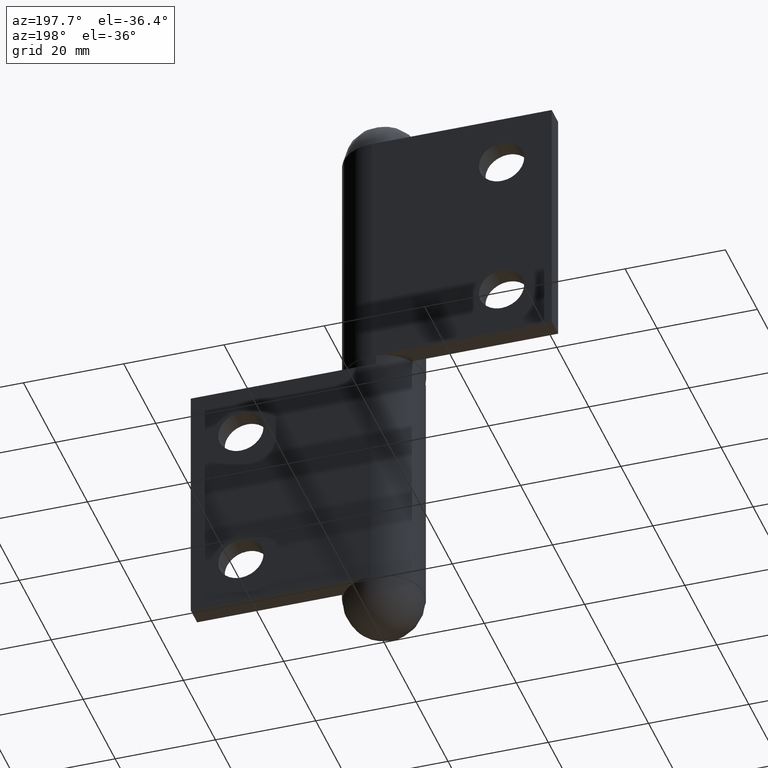
[diagram: clean part render]
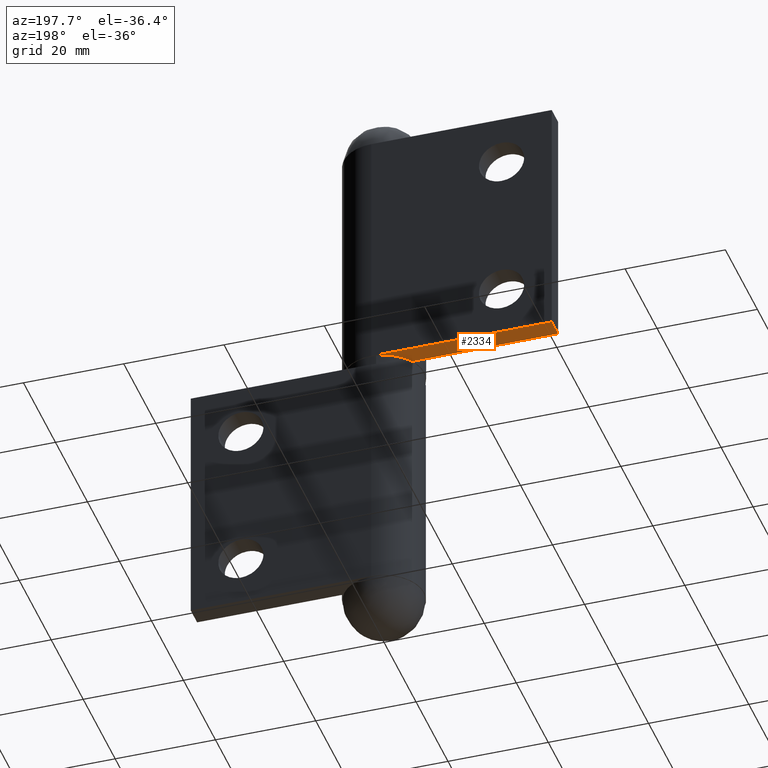
[diagram: same view with one face highlighted and labeled with its STEP entity id]
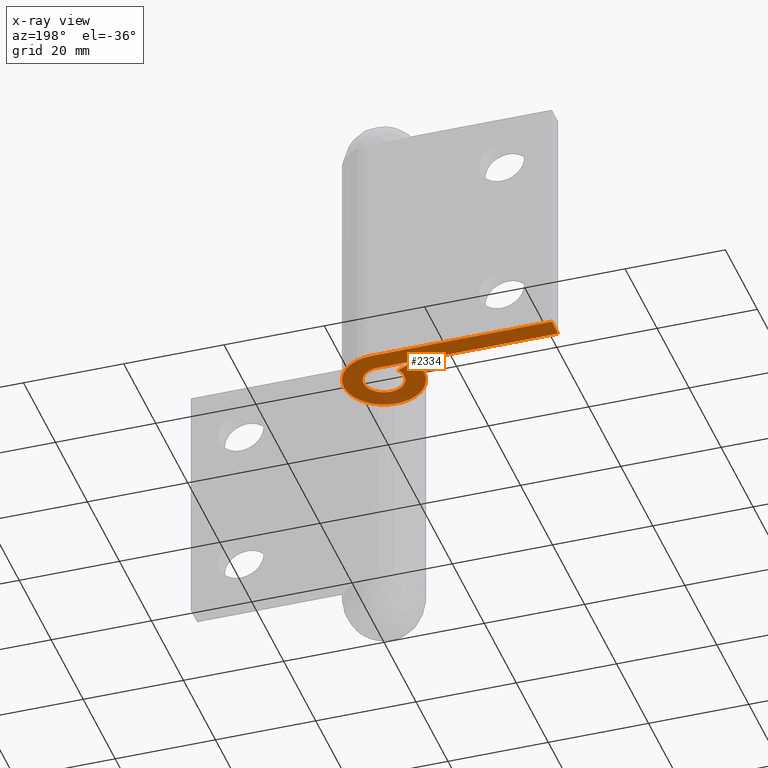
[diagram: x-ray of the same camera — body ghosted, the highlighted face saturated]
A machine part, auxiliary view. The second image highlights one B-rep face of the part: STEP entity #2334.
The next image is the same camera in x-ray: the body ghosted, the highlighted face saturated — about 11% of this face is hidden behind the body in this view.
In plain terms, the highlighted face is a freeform B-spline surface patch.
Its self-contained STEP definition (entity closure, byte-faithful):
#2257=CARTESIAN_POINT('',(-38.197798981931811,-8.799121478780995,52.0));
#2258=CARTESIAN_POINT('',(10.197781487675201,-8.799121478780995,52.0));
#2259=CARTESIAN_POINT('',(-38.197798981931811,8.799196664071339,52.0));
#2260=CARTESIAN_POINT('',(10.197781487675201,8.799196664071339,52.0));
#2261=B_SPLINE_SURFACE_WITH_KNOTS('',1,1,((#2257,#2259),(#2258,#2260)),.UNSPECIFIED.,.F.,.F.,.U.,(2,2),(2,2),(0.0,48.395580469607012),(0.0,17.598318142852339),.UNSPECIFIED.);
#2262=CARTESIAN_POINT('',(-0.634428877022476,4.0,52.0));
#2263=VERTEX_POINT('',#2262);
#2264=CARTESIAN_POINT('',(-3.521895782436465,1.999687500000000,52.0));
#2265=VERTEX_POINT('',#2264);
#2266=CARTESIAN_POINT('',(-0.634428877022477,3.999999999999999,52.0));
#2267=CARTESIAN_POINT('',(2.555869873235751,4.506004413373135,52.0));
#2268=CARTESIAN_POINT('',(3.758724729863240,1.508140711311287,52.0));
#2269=CARTESIAN_POINT('',(4.961579586490728,-1.489722990750561,52.0));
#2270=CARTESIAN_POINT('',(2.306311165719121,-3.329178398175638,52.0));
#2271=CARTESIAN_POINT('',(-0.348957255052484,-5.168633805600712,52.0));
#2272=CARTESIAN_POINT('',(-2.732876585264097,-2.988960616956210,52.0));
#2273=CARTESIAN_POINT('',(-5.116795915475714,-0.809287428311702,52.0));
#2274=CARTESIAN_POINT('',(-3.521895782436466,1.999687499999996,52.0));
#2282=(BOUNDED_CURVE()B_SPLINE_CURVE(2,(#2266,#2267,#2268,#2269,#2270,#2271,#2272,#2273,#2274),.UNSPECIFIED.,.F.,.U.)B_SPLINE_CURVE_WITH_KNOTS((3,2,2,2,3),(0.0,0.250000000000000,0.500000000000000,0.750000000000000,1.0),.UNSPECIFIED.)CURVE()GEOMETRIC_REPRESENTATION_ITEM()RATIONAL_B_SPLINE_CURVE((1.0,0.781792876462162,1.0,0.781792876462162,1.0,0.781792876462162,1.0,0.781792876462162,1.0))REPRESENTATION_ITEM(''));
#2283=EDGE_CURVE('',#2263,#2265,#2282,.T.);
#2284=ORIENTED_EDGE('',*,*,#2283,.F.);
#2285=CARTESIAN_POINT('',(-36.0,4.0,52.0));
#2286=VERTEX_POINT('',#2285);
#2287=CARTESIAN_POINT('',(-0.634428877022476,4.0,52.0));
#2288=CARTESIAN_POINT('',(-36.0,4.0,52.0));
#2289=QUASI_UNIFORM_CURVE('',1,(#2287,#2288),.UNSPECIFIED.,.F.,.U.);
#2290=EDGE_CURVE('',#2263,#2286,#2289,.T.);
#2291=ORIENTED_EDGE('',*,*,#2290,.T.);
#2292=CARTESIAN_POINT('',(-36.0,8.0,52.0));
#2293=VERTEX_POINT('',#2292);
#2294=CARTESIAN_POINT('',(-36.0,4.0,52.0));
#2295=CARTESIAN_POINT('',(-36.0,8.0,52.0));
#2296=QUASI_UNIFORM_CURVE('',1,(#2294,#2295),.UNSPECIFIED.,.F.,.U.);
#2297=EDGE_CURVE('',#2286,#2293,#2296,.T.);
#2298=ORIENTED_EDGE('',*,*,#2297,.T.);
#2299=CARTESIAN_POINT('',(0.0,8.0,52.0));
#2300=VERTEX_POINT('',#2299);
#2301=CARTESIAN_POINT('',(-36.0,8.0,52.0));
#2302=CARTESIAN_POINT('',(0.0,8.0,52.0));
#2303=QUASI_UNIFORM_CURVE('',1,(#2301,#2302),.UNSPECIFIED.,.F.,.U.);
#2304=EDGE_CURVE('',#2293,#2300,#2303,.T.);
#2305=ORIENTED_EDGE('',*,*,#2304,.T.);
#2306=CARTESIAN_POINT('',(-6.956831175183141,3.950000000000000,52.0));
#2307=VERTEX_POINT('',#2306);
#2308=CARTESIAN_POINT('',(0.0,8.0,52.0));
#2309=CARTESIAN_POINT('',(6.127181380343105,8.0,52.000000000000014));
#2310=CARTESIAN_POINT('',(7.723666074339942,2.084462130164574,52.0));
#2311=CARTESIAN_POINT('',(9.320150768336779,-3.831075739670848,52.000000000000014));
#2312=CARTESIAN_POINT('',(4.024922359499626,-6.913754406977439,52.0));
#2313=CARTESIAN_POINT('',(-1.270306049337526,-9.996433074284029,52.000000000000014));
#2314=CARTESIAN_POINT('',(-5.626216515532533,-5.687326939815309,52.0));
#2315=CARTESIAN_POINT('',(-9.982126981727545,-1.378220805346582,52.000000000000014));
#2316=CARTESIAN_POINT('',(-6.956831175183142,3.949999999999993,52.0));
#2324=(BOUNDED_CURVE()B_SPLINE_CURVE(2,(#2308,#2309,#2310,#2311,#2312,#2313,#2314,#2315,#2316),.UNSPECIFIED.,.F.,.U.)B_SPLINE_CURVE_WITH_KNOTS((3,2,2,2,3),(0.0,0.250000000000000,0.500000000000000,0.750000000000000,1.0),.UNSPECIFIED.)CURVE()GEOMETRIC_REPRESENTATION_ITEM()RATIONAL_B_SPLINE_CURVE((1.0,0.793901053743655,1.0,0.793901053743655,1.0,0.793901053743655,1.0,0.793901053743655,1.0))REPRESENTATION_ITEM(''));
#2325=EDGE_CURVE('',#2300,#2307,#2324,.T.);
#2326=ORIENTED_EDGE('',*,*,#2325,.T.);
#2327=CARTESIAN_POINT('',(-6.956831175183141,3.950000000000000,52.0));
#2328=CARTESIAN_POINT('',(-3.521895782436465,1.999687500000000,52.0));
#2329=QUASI_UNIFORM_CURVE('',1,(#2327,#2328),.UNSPECIFIED.,.F.,.U.);
#2330=EDGE_CURVE('',#2307,#2265,#2329,.T.);
#2331=ORIENTED_EDGE('',*,*,#2330,.T.);
#2332=EDGE_LOOP('',(#2284,#2291,#2298,#2305,#2326,#2331));
#2333=FACE_OUTER_BOUND('',#2332,.T.);
#2334=ADVANCED_FACE('',(#2333),#2261,.F.);